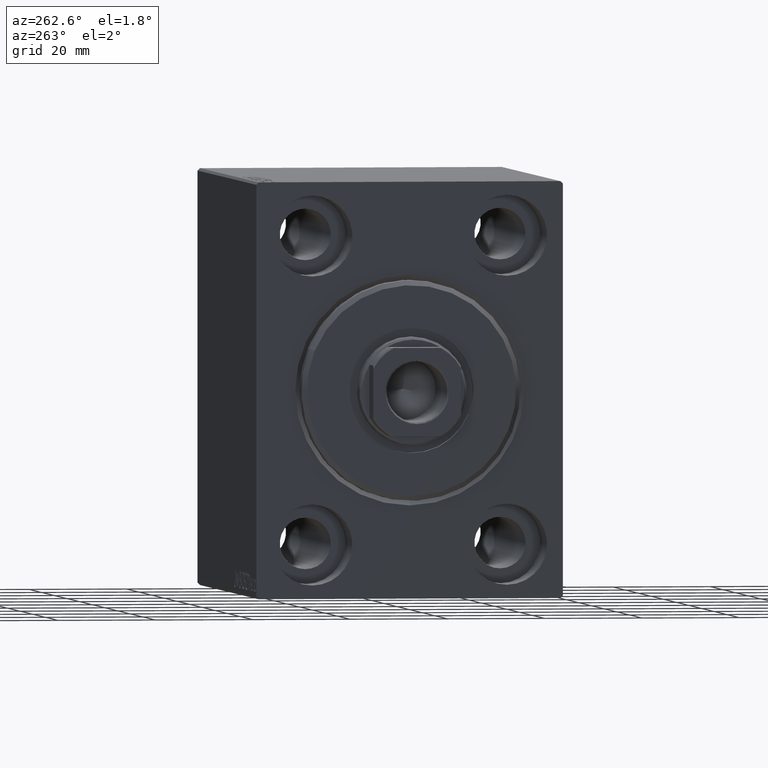
[diagram: clean part render]
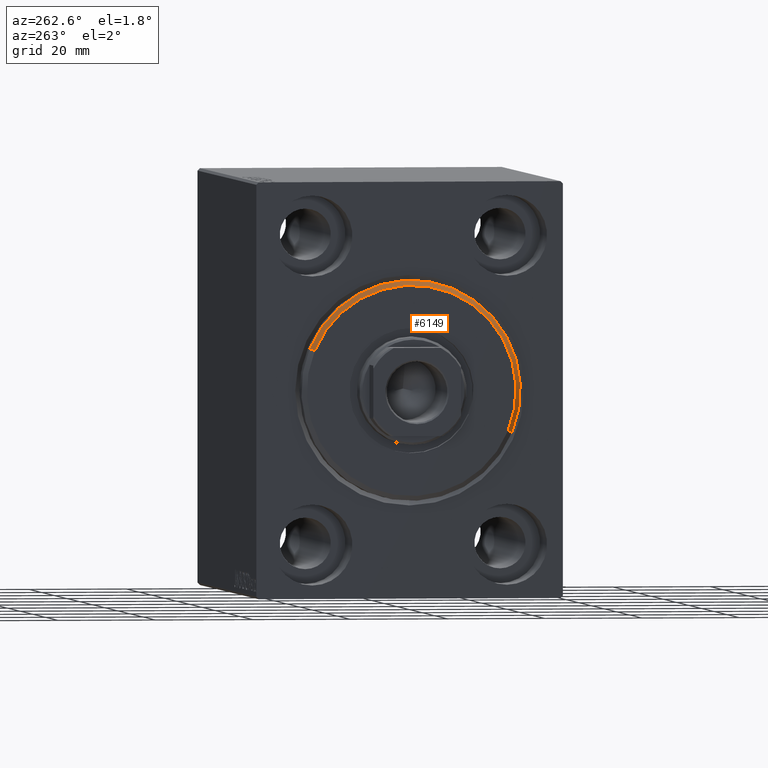
[diagram: same view with one face highlighted and labeled with its STEP entity id]
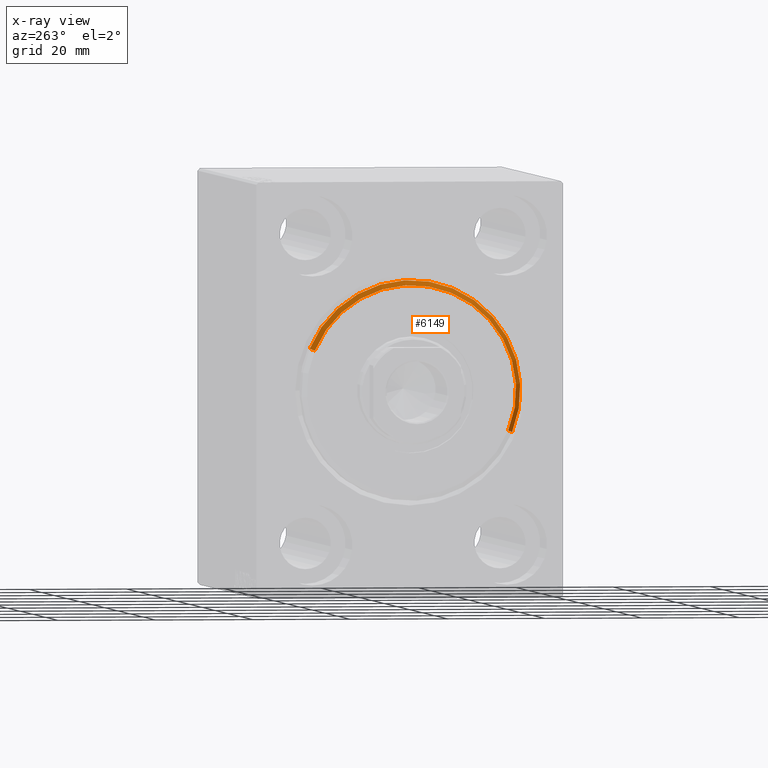
[diagram: x-ray of the same camera — body ghosted, the highlighted face saturated]
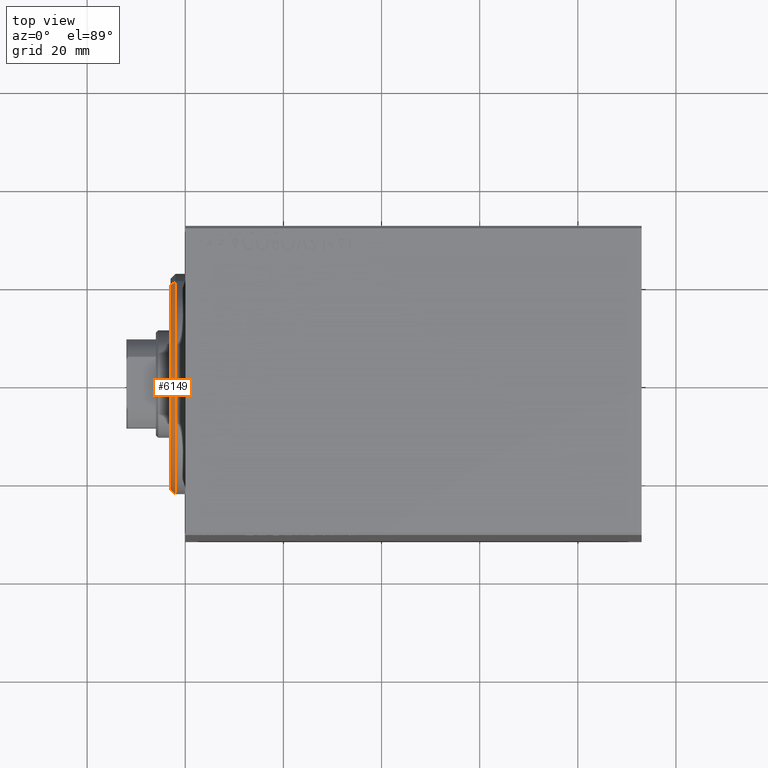
[diagram: same view with one face highlighted and labeled with its STEP entity id]
A machine part, auxiliary view. The second image highlights one B-rep face of the part: STEP entity #6149.
The next image is the same camera in x-ray: the body ghosted, the highlighted face saturated — about 0% of this face is hidden behind the body in this view.
A second angle (top view) of the same face is appended — the face is thin or edge-on in the first view.
In plain terms, the highlighted conical surface has half-angle 45 deg.
Its self-contained STEP definition (entity closure, byte-faithful):
#427 = VERTEX_POINT ( 'NONE', #15040 ) ;
#515 = EDGE_CURVE ( 'NONE', #27628, #14267, #26720, .T. ) ;
#662 = EDGE_CURVE ( 'NONE', #427, #14267, #12746, .T. ) ;
#952 = EDGE_CURVE ( 'NONE', #27976, #427, #5224, .T. ) ;
#1447 = VECTOR ( 'NONE', #42902, 1000.000000000000000 ) ;
#2171 = DIRECTION ( 'NONE',  ( -1.000000000000000000, 0.000000000000000000, 0.000000000000000000 ) ) ;
#5224 = LINE ( 'NONE', #15157, #26084 ) ;
#6149 = ADVANCED_FACE ( 'NONE', ( #23372 ), #27576, .T. ) ;
#11266 = DIRECTION ( 'NONE',  ( 1.000000000000000000, -0.000000000000000000, 0.000000000000000000 ) ) ;
#12746 = CIRCLE ( 'NONE', #40987, 22.50000000000000355 ) ;
#13243 = ORIENTED_EDGE ( 'NONE', *, *, #952, .F. ) ;
#13466 = EDGE_CURVE ( 'NONE', #27628, #27976, #35567, .T. ) ;
#14267 = VERTEX_POINT ( 'NONE', #19424 ) ;
#15040 = CARTESIAN_POINT ( 'NONE',  ( 1.999999999999999112, 2.755455298081545172E-15, -22.50000000000000355 ) ) ;
#15157 = CARTESIAN_POINT ( 'NONE',  ( 3.000000000000000000, 2.632990618166810024E-15, -21.50000000000000355 ) ) ;
#15640 = DIRECTION ( 'NONE',  ( 0.000000000000000000, 0.000000000000000000, -1.000000000000000000 ) ) ;
#15912 = CARTESIAN_POINT ( 'NONE',  ( 3.000000000000000000, 0.000000000000000000, 21.50000000000000355 ) ) ;
#16514 = DIRECTION ( 'NONE',  ( 0.000000000000000000, 0.000000000000000000, 1.000000000000000000 ) ) ;
#18542 = CARTESIAN_POINT ( 'NONE',  ( 3.000000000000000000, 0.000000000000000000, 0.000000000000000000 ) ) ;
#19424 = CARTESIAN_POINT ( 'NONE',  ( 1.999999999999999112, 0.000000000000000000, 22.50000000000000355 ) ) ;
#21610 = CARTESIAN_POINT ( 'NONE',  ( 1.999999999999999112, 0.000000000000000000, 0.000000000000000000 ) ) ;
#22945 = CARTESIAN_POINT ( 'NONE',  ( 3.000000000000000000, 2.694222958124177598E-15, -21.50000000000000355 ) ) ;
#23098 = EDGE_LOOP ( 'NONE', ( #13243, #33360, #36778, #41353 ) ) ;
#23372 = FACE_OUTER_BOUND ( 'NONE', #23098, .T. ) ;
#24247 = AXIS2_PLACEMENT_3D ( 'NONE', #18542, #11266, #24749 ) ;
#24749 = DIRECTION ( 'NONE',  ( 0.000000000000000000, 0.000000000000000000, -1.000000000000000000 ) ) ;
#24894 = DIRECTION ( 'NONE',  ( -0.7071067811865487940, 8.659560562354919300E-17, -0.7071067811865463515 ) ) ;
#26084 = VECTOR ( 'NONE', #24894, 1000.000000000000000 ) ;
#26720 = LINE ( 'NONE', #15912, #1447 ) ;
#27576 = CONICAL_SURFACE ( 'NONE', #33241, 21.50000000000000355, 0.7853981633974466137 ) ;
#27628 = VERTEX_POINT ( 'NONE', #38726 ) ;
#27976 = VERTEX_POINT ( 'NONE', #22945 ) ;
#30228 = CARTESIAN_POINT ( 'NONE',  ( 3.000000000000000000, 0.000000000000000000, 0.000000000000000000 ) ) ;
#33241 = AXIS2_PLACEMENT_3D ( 'NONE', #30228, #39979, #16514 ) ;
#33360 = ORIENTED_EDGE ( 'NONE', *, *, #13466, .F. ) ;
#35567 = CIRCLE ( 'NONE', #24247, 21.50000000000000355 ) ;
#36778 = ORIENTED_EDGE ( 'NONE', *, *, #515, .T. ) ;
#38726 = CARTESIAN_POINT ( 'NONE',  ( 3.000000000000000000, 0.000000000000000000, 21.50000000000000355 ) ) ;
#39979 = DIRECTION ( 'NONE',  ( -1.000000000000000000, 0.000000000000000000, 0.000000000000000000 ) ) ;
#40987 = AXIS2_PLACEMENT_3D ( 'NONE', #21610, #2171, #15640 ) ;
#41353 = ORIENTED_EDGE ( 'NONE', *, *, #662, .F. ) ;
#42902 = DIRECTION ( 'NONE',  ( -0.7071067811865487940, 0.000000000000000000, 0.7071067811865463515 ) ) ;